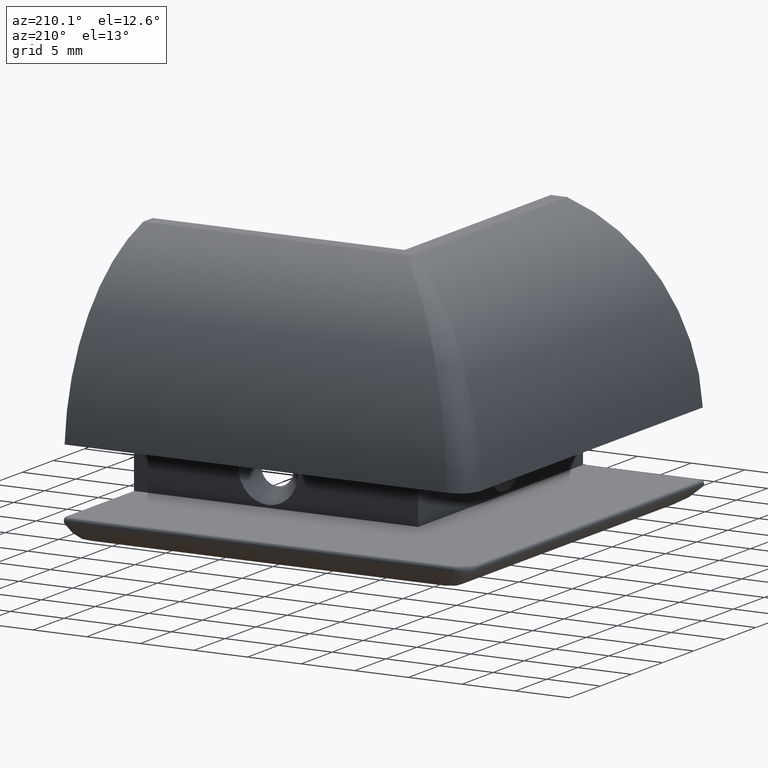
[diagram: clean part render]
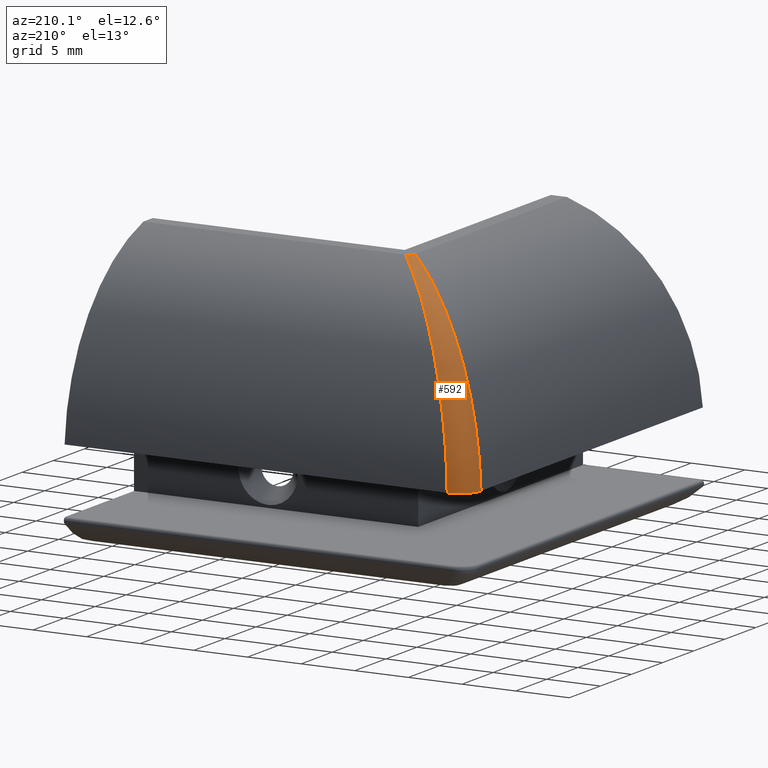
[diagram: same view with one face highlighted and labeled with its STEP entity id]
A machine part, auxiliary view. The second image highlights one B-rep face of the part: STEP entity #592.
In plain terms, the highlighted face is a freeform B-spline surface patch.
Its self-contained STEP definition (entity closure, byte-faithful):
#410=CARTESIAN_POINT('',(0.564971751412372,24.999999999998863,13.279091526508559));
#411=VERTEX_POINT('',#410);
#418=CARTESIAN_POINT('',(-1.136868E-013,24.435028248586491,13.279091526508530));
#419=VERTEX_POINT('',#418);
#420=CARTESIAN_POINT('',(0.564971751411576,24.999999999999659,13.279091526508303));
#421=CARTESIAN_POINT('',(0.480808786435318,24.999999999999659,13.279091526508303));
#422=CARTESIAN_POINT('',(0.346866351524909,24.984152537374598,13.279091526508303));
#423=CARTESIAN_POINT('',(0.163206655248246,24.890137166305522,13.279091526508303));
#424=CARTESIAN_POINT('',(0.023813131956103,24.711620583962599,13.279091526508303));
#425=CARTESIAN_POINT('',(-2.273737E-013,24.534891715491881,13.279091526508303));
#426=CARTESIAN_POINT('',(-2.273737E-013,24.435028248587173,13.279091526508303));
#427=B_SPLINE_CURVE_WITH_KNOTS('',3,(#420,#421,#422,#423,#424,#425,#426),.UNSPECIFIED.,.F.,.U.,(4,1,1,1,4),(0.0,0.253665090765582,0.396684530384670,0.610476051265193,0.912302647309955),.UNSPECIFIED.);
#428=EDGE_CURVE('',#411,#419,#427,.T.);
#448=CARTESIAN_POINT('',(-10.677258814983835,37.674363463309362,-2.745814675967637));
#449=CARTESIAN_POINT('',(-10.936557546081463,37.673599056104074,-2.731856812578596));
#450=CARTESIAN_POINT('',(-11.460807815870067,37.568497183185194,-2.709227519881466));
#451=CARTESIAN_POINT('',(-12.123856867911043,37.123599617436014,-2.697449319610108));
#452=CARTESIAN_POINT('',(-12.568622891927976,36.460475573931099,-2.709237315821045));
#453=CARTESIAN_POINT('',(-12.673621230187718,35.936232205302851,-2.731871056287303));
#454=CARTESIAN_POINT('',(-12.674336952330252,35.676945684800231,-2.745830570985149));
#455=CARTESIAN_POINT('',(-10.664345252834229,37.659804859540905,-2.478705862621625));
#456=CARTESIAN_POINT('',(-10.923144626519843,37.658623570215198,-2.460913948907780));
#457=CARTESIAN_POINT('',(-11.446368749258555,37.552999145788434,-2.432074150202175));
#458=CARTESIAN_POINT('',(-12.108413060839625,37.108337233925916,-2.417061819528227));
#459=CARTESIAN_POINT('',(-12.553035375168825,36.446260661526992,-2.432078645369735));
#460=CARTESIAN_POINT('',(-12.658629262542551,35.923008931771754,-2.460922036160967));
#461=CARTESIAN_POINT('',(-12.659792913895020,35.664202925205224,-2.478715429538393));
#462=CARTESIAN_POINT('',(-10.627975810262598,37.618802361736954,-1.945978442514300));
#463=CARTESIAN_POINT('',(-10.885394768747508,37.616441924421345,-1.920514835548278));
#464=CARTESIAN_POINT('',(-11.405794323894394,37.509308923842248,-1.879250458194266));
#465=CARTESIAN_POINT('',(-12.065038058065742,37.065215177903170,-1.857766764695334));
#466=CARTESIAN_POINT('',(-12.509220078261080,36.406000140206359,-1.879241173226240));
#467=CARTESIAN_POINT('',(-12.616424443418552,35.885529295142845,-1.920507271283678));
#468=CARTESIAN_POINT('',(-12.618811076622610,35.628079148622326,-1.945972129815099));
#469=CARTESIAN_POINT('',(-10.513168755104802,37.489370187523100,-0.890730346168925));
#470=CARTESIAN_POINT('',(-10.766454225247889,37.483399733601956,-0.850865338848883));
#471=CARTESIAN_POINT('',(-11.278427822389833,37.371572112195473,-0.786348067914975));
#472=CARTESIAN_POINT('',(-11.929089167533453,36.928980308030425,-0.752793187145820));
#473=CARTESIAN_POINT('',(-12.371626712870007,36.278307812571349,-0.786353992183226));
#474=CARTESIAN_POINT('',(-12.483411398411745,35.766384490622812,-0.850869633570283));
#475=CARTESIAN_POINT('',(-12.489366359109322,35.513123256082231,-0.890733257625288));
#476=CARTESIAN_POINT('',(-10.207190103756655,37.144413320085320,0.912703110778325));
#477=CARTESIAN_POINT('',(-10.449519220008488,37.128984300063308,0.974924693757721));
#478=CARTESIAN_POINT('',(-10.939037368916122,37.005072272517076,1.075297574612049));
#479=CARTESIAN_POINT('',(-11.566886233592539,36.566969463778612,1.127417698135854));
#480=CARTESIAN_POINT('',(-12.005030060041072,35.939132082740258,1.075302643297902));
#481=CARTESIAN_POINT('',(-12.128975940353326,35.449572911961809,0.974927888689212));
#482=CARTESIAN_POINT('',(-12.144416431011180,35.207227029142075,0.912705413963598));
#483=CARTESIAN_POINT('',(-9.485462959242806,36.330746308286436,3.342750804083873));
#484=CARTESIAN_POINT('',(-9.704373659078366,36.296576777154208,3.425142496709153));
#485=CARTESIAN_POINT('',(-10.146085357147399,36.149804661386483,3.556921055775053));
#486=CARTESIAN_POINT('',(-10.724099887093166,35.724075040351238,3.625030906512071));
#487=CARTESIAN_POINT('',(-11.149816629718384,35.146058305198984,3.556920362159466));
#488=CARTESIAN_POINT('',(-11.296579576218315,34.704355584684180,3.425141422682213));
#489=CARTESIAN_POINT('',(-11.330745256974254,34.485450481958765,3.342750027573429));
#490=CARTESIAN_POINT('',(-8.260013126459148,34.949188040554958,5.917116799163306));
#491=CARTESIAN_POINT('',(-8.446163462015271,34.893709030635378,6.004007777020259));
#492=CARTESIAN_POINT('',(-8.821116153298387,34.724718728111370,6.141167252057013));
#493=CARTESIAN_POINT('',(-9.325729549396733,34.325738663439722,6.211566712368771));
#494=CARTESIAN_POINT('',(-9.724713450384179,33.821127108314315,6.141168475977313));
#495=CARTESIAN_POINT('',(-9.893708296087825,33.446168205407282,6.004008058882278));
#496=CARTESIAN_POINT('',(-9.949188316467444,33.260016401053164,5.917117002950922));
#497=CARTESIAN_POINT('',(-6.772910793057298,33.272645705886092,8.112249759991743));
#498=CARTESIAN_POINT('',(-6.926777126399496,33.203185535299909,8.190007315944857));
#499=CARTESIAN_POINT('',(-7.236168558525945,33.025165347835134,8.311177117407219));
#500=CARTESIAN_POINT('',(-7.664133197358954,32.664133061577850,8.372951238898727));
#501=CARTESIAN_POINT('',(-8.025164624620429,32.236168910612406,8.311177747230159));
#502=CARTESIAN_POINT('',(-8.203185728650658,31.926775877827016,8.190007241752173));
#503=CARTESIAN_POINT('',(-8.272645633260135,31.772909931106767,8.112249706350065));
#504=CARTESIAN_POINT('',(-5.100004938410024,31.386630584912147,9.931262705327489));
#505=CARTESIAN_POINT('',(-5.223907061935019,31.312124115469711,9.992820590897001));
#506=CARTESIAN_POINT('',(-5.472655146526256,31.139383829817792,10.087640933936086));
#507=CARTESIAN_POINT('',(-5.825267644912827,30.825269595559941,10.135693117883370));
#508=CARTESIAN_POINT('',(-6.139382045830187,30.472657697818658,10.087641533752510));
#509=CARTESIAN_POINT('',(-6.312124064307350,30.223907392326211,9.992820610529506));
#510=CARTESIAN_POINT('',(-6.386630604131462,30.100005166495013,9.931262719521872));
#511=CARTESIAN_POINT('',(-3.296364263950704,29.353226508177301,11.393252884158054));
#512=CARTESIAN_POINT('',(-3.392927210686455,29.282085376919976,11.436496200708721));
#513=CARTESIAN_POINT('',(-3.586528132969681,29.127227207674359,11.502458018042773));
#514=CARTESIAN_POINT('',(-3.866640614438296,28.866641652761292,11.535718987464634));
#515=CARTESIAN_POINT('',(-4.127225945477916,28.586529545037102,11.502458408227401));
#516=CARTESIAN_POINT('',(-4.282085390789685,28.392927121126363,11.436496195386864));
#517=CARTESIAN_POINT('',(-4.353226502968596,28.296364202122980,11.393252880310310));
#518=CARTESIAN_POINT('',(-1.715130849992551,27.570561858979580,12.333956425221892));
#519=CARTESIAN_POINT('',(-1.790798897572013,27.508074658293324,12.362925302739308));
#520=CARTESIAN_POINT('',(-1.942368409484037,27.376486862361297,12.406855501086484));
#521=CARTESIAN_POINT('',(-2.164449321110598,27.164450275256598,12.428941764748972));
#522=CARTESIAN_POINT('',(-2.376485744906037,26.942369657643667,12.406855766538099));
#523=CARTESIAN_POINT('',(-2.508074656571519,26.790798908696829,12.362925303400386));
#524=CARTESIAN_POINT('',(-2.570561859627822,26.715130857672374,12.333956425699846));
#525=CARTESIAN_POINT('',(-0.420339690366471,26.110828964403144,12.925490279727700));
#526=CARTESIAN_POINT('',(-0.480139626079514,26.057879927474808,12.944722732311558));
#527=CARTESIAN_POINT('',(-0.599874083810250,25.948494307901701,12.973780172816829));
#528=CARTESIAN_POINT('',(-0.776780167242505,25.776780914739799,12.988361567916225));
#529=CARTESIAN_POINT('',(-0.948493397715478,25.599875054200972,12.973780347495342));
#530=CARTESIAN_POINT('',(-1.057879927819259,25.480139623861824,12.944722732179820));
#531=CARTESIAN_POINT('',(-1.110828964275416,25.420339688835163,12.925490279632449));
#532=CARTESIAN_POINT('',(0.235538299737243,25.371399543785415,13.170035767059243));
#533=CARTESIAN_POINT('',(0.183354327081324,25.324030859703889,13.185043654727156));
#534=CARTESIAN_POINT('',(0.078924394988620,25.226863987561678,13.207682984683405));
#535=CARTESIAN_POINT('',(-0.075790370400373,25.075791028234942,13.219035178396378));
#536=CARTESIAN_POINT('',(-0.226863180804860,24.921076455468235,13.207683120891378));
#537=CARTESIAN_POINT('',(-0.324030859705136,24.816645672917463,13.185043654727131));
#538=CARTESIAN_POINT('',(-0.371399543786662,24.764461700261553,13.170035767059211));
#539=CARTESIAN_POINT('',(0.564971751412259,24.999999999998863,13.279091526508559));
#540=CARTESIAN_POINT('',(0.516617430407740,24.955504270156247,13.292194611256551));
#541=CARTESIAN_POINT('',(0.419839358626339,24.864543422272657,13.311948862104277));
#542=CARTESIAN_POINT('',(0.276190261101764,24.723810350390291,13.321851163103259));
#543=CARTESIAN_POINT('',(0.135457331423396,24.580161430064258,13.311948980939462));
#544=CARTESIAN_POINT('',(0.044495729842500,24.483382569591008,13.292194611256527));
#545=CARTESIAN_POINT('',(-1.136868E-013,24.435028248586491,13.279091526508529));
#546=B_SPLINE_SURFACE_WITH_KNOTS('',3,3,((#448,#455,#462,#469,#476,#483,#490,#497,#504,#511,#518,#525,#532,#539),(#449,#456,#463,#470,#477,#484,#491,#498,#505,#512,#519,#526,#533,#540),(#450,#457,#464,#471,#478,#485,#492,#499,#506,#513,#520,#527,#534,#541),(#451,#458,#465,#472,#479,#486,#493,#500,#507,#514,#521,#528,#535,#542),(#452,#459,#466,#473,#480,#487,#494,#501,#508,#515,#522,#529,#536,#543),(#453,#460,#467,#474,#481,#488,#495,#502,#509,#516,#523,#530,#537,#544),(#454,#461,#468,#475,#482,#489,#496,#503,#510,#517,#524,#531,#538,#545)),.UNSPECIFIED.,.F.,.F.,.U.,(4,1,1,1,4),(4,1,1,1,1,1,1,1,1,1,1,4),(0.0,0.523895686505272,1.047788923873894,1.571679712105867,2.095568051201188),(0.0,0.821783984052327,1.642392319278474,3.277708246537876,6.512504007188191,9.701725322052237,12.847637987096700,15.958678505575671,19.042914718922333,22.107404295145621,23.634894725555398,25.159647192725949),.UNSPECIFIED.);
#547=CARTESIAN_POINT('',(-10.674910644745978,37.671716162767666,-2.699997299999950));
#548=VERTEX_POINT('',#547);
#549=CARTESIAN_POINT('',(-12.671716162768234,35.674910644745410,-2.699997299999978));
#550=VERTEX_POINT('',#549);
#551=CARTESIAN_POINT('',(-10.674910644745978,37.671716162767666,-2.699997299999943));
#552=CARTESIAN_POINT('',(-10.866850490078377,37.671740758147394,-2.699997299999943));
#553=CARTESIAN_POINT('',(-11.385334576173591,37.596994432154247,-2.699997299999943));
#554=CARTESIAN_POINT('',(-12.131361851229599,37.157085902048607,-2.699997299999943));
#555=CARTESIAN_POINT('',(-12.590539410815154,36.408575325745346,-2.699997299999943));
#556=CARTESIAN_POINT('',(-12.671736016044179,35.878554097973733,-2.699997299999943));
#557=CARTESIAN_POINT('',(-12.671716162768234,35.674910644745410,-2.699997299999943));
#558=B_SPLINE_CURVE_WITH_KNOTS('',3,(#551,#552,#553,#554,#555,#556,#557),.UNSPECIFIED.,.F.,.U.,(4,1,1,1,4),(0.0,0.577800179289938,1.551435086208202,2.523602633982478,3.136904193783606),.UNSPECIFIED.);
#559=EDGE_CURVE('',#548,#550,#558,.T.);
#560=ORIENTED_EDGE('',*,*,#559,.T.);
#561=CARTESIAN_POINT('',(-12.671716162768234,35.674910644745410,-2.699997299999978));
#562=CARTESIAN_POINT('',(-12.613664460061841,35.623418463028543,-1.674123351390890));
#563=CARTESIAN_POINT('',(-12.333886670338188,35.375254014491475,0.243161765373316));
#564=CARTESIAN_POINT('',(-11.400391303963602,34.547238456011769,3.195466882008404));
#565=CARTESIAN_POINT('',(-9.912648214661431,33.227602098579382,6.038187744603874));
#566=CARTESIAN_POINT('',(-8.209656602031487,31.717039109183816,8.163368699306993));
#567=CARTESIAN_POINT('',(-6.249549821048845,29.978413541883356,10.041549787588984));
#568=CARTESIAN_POINT('',(-3.708921221689366,27.724861907495097,11.874504026807983));
#569=CARTESIAN_POINT('',(-1.383074290934246,25.661822802344432,12.871804361852803));
#570=CARTESIAN_POINT('',(-2.273737E-013,24.435028248586491,13.279091526508530));
#571=B_SPLINE_CURVE_WITH_KNOTS('',3,(#561,#562,#563,#564,#565,#566,#567,#568,#569,#570),.UNSPECIFIED.,.F.,.U.,(4,1,1,1,1,1,1,4),(0.0,2.994228196436597,5.655530248782851,9.363928294160376,13.215457831691287,14.957780629487472,19.098856520420163,24.911612157226884),.UNSPECIFIED.);
#572=EDGE_CURVE('',#550,#419,#571,.T.);
#573=ORIENTED_EDGE('',*,*,#572,.T.);
#574=ORIENTED_EDGE('',*,*,#428,.F.);
#575=CARTESIAN_POINT('',(0.564971751412259,24.999999999998863,13.279091526508559));
#576=CARTESIAN_POINT('',(-0.168830796954808,25.827280685391315,13.035474240773091));
#577=CARTESIAN_POINT('',(-1.382443308913821,27.195493691640308,12.523446896961950));
#578=CARTESIAN_POINT('',(-3.394767904508854,29.464165658480169,11.329627655498577));
#579=CARTESIAN_POINT('',(-4.978413541884265,31.249549821047822,10.041549787589013));
#580=CARTESIAN_POINT('',(-6.717039109184498,33.209656602030805,8.163368699307014));
#581=CARTESIAN_POINT('',(-8.198092895151490,34.879379872799177,6.079703654602433));
#582=CARTESIAN_POINT('',(-9.180183064781659,35.986577211452413,3.986166541428403));
#583=CARTESIAN_POINT('',(-9.859088657485586,36.751967690537981,2.083559097179567));
#584=CARTESIAN_POINT('',(-10.375254014491702,37.333886670337165,0.243161765373348));
#585=CARTESIAN_POINT('',(-10.623418463029225,37.613664460061273,-1.674123351390861));
#586=CARTESIAN_POINT('',(-10.674910644745978,37.671716162767666,-2.699997299999950));
#587=B_SPLINE_CURVE_WITH_KNOTS('',3,(#575,#576,#577,#578,#579,#580,#581,#582,#583,#584,#585,#586),.UNSPECIFIED.,.F.,.U.,(4,1,1,1,1,1,1,1,1,4),(21.434734234792622,24.911612157227008,27.247489871599690,31.388565762532966,33.130888560329396,36.982418097860858,40.509094493261557,40.690816143238891,43.352118195585248,46.346346392021957),.UNSPECIFIED.);
#588=EDGE_CURVE('',#411,#548,#587,.T.);
#589=ORIENTED_EDGE('',*,*,#588,.T.);
#590=EDGE_LOOP('',(#560,#573,#574,#589));
#591=FACE_OUTER_BOUND('',#590,.T.);
#592=ADVANCED_FACE('',(#591),#546,.T.);